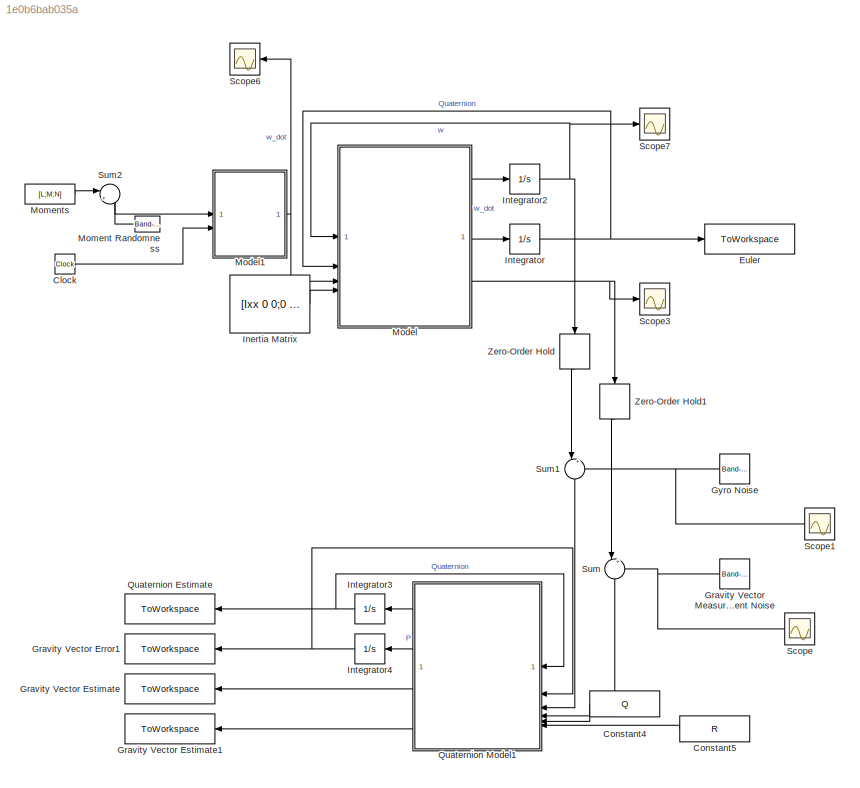
MODEL slx_1e0b6bab035a
KIND model
CONFIG AbsTol = auto
CONFIG EnableMultiTasking = off
CONFIG FixedStep = t_step_model
CONFIG MaxStep = auto
CONFIG MinStep = auto
CONFIG RelTol = 1e-3
CONFIG SampleTimeConstraint = Unconstrained
CONFIG SolverName = ode4
CONFIG StartTime = 0.0
CONFIG StopTime = tf
BLOCK [Clock] Clock
  Decimation = 1/t_step_model
BLOCK [Constant] Constant4
  Value = Q
BLOCK [Constant] Constant5
  Value = R
BLOCK [ToWorkspace] Euler
  FixptAsFi = on
  MaxDataPoints = inf
  SampleTime = -1
  SaveFormat = Structure
  VariableName = Quaternion
BLOCK [ToWorkspace] Gravity Vector Error1
  FixptAsFi = on
  MaxDataPoints = inf
  SampleTime = -1
  SaveFormat = Structure
  VariableName = P
BLOCK [ToWorkspace] Gravity Vector Estimate
  FixptAsFi = on
  MaxDataPoints = inf
  SampleTime = -1
  SaveFormat = Structure
  VariableName = yhat
BLOCK [ToWorkspace] Gravity Vector Estimate1
  FixptAsFi = on
  MaxDataPoints = inf
  NameLocation = top
  SampleTime = -1
  SaveFormat = Structure
  VariableName = ybar
BLOCK [Reference] Gravity Vector Measurement Noise  REF=simulink/Sources/Band-Limited
White Noise
  SourceBlock = simulink/Sources/Band-Limited\nWhite Noise
  SourceType = Band-Limited White Noise.
BLOCK [Reference] Gyro Noise  REF=simulink/Sources/Band-Limited
White Noise
  SourceBlock = simulink/Sources/Band-Limited\nWhite Noise
  SourceType = Band-Limited White Noise.
BLOCK [Constant] Inertia Matrix
  Value = [Ixx 0 0;0 Iyy 0;0 0 Izz]
BLOCK [Integrator] Integrator
  InitialCondition = [1;0;0;0]
BLOCK [Integrator] Integrator2
  InitialCondition = [0;0;0.2]
BLOCK [Integrator] Integrator3
  InitialCondition = [0.7;0.1;-0.05;0.2]
BLOCK [Integrator] Integrator4
  InitialCondition = zeros(4,4)
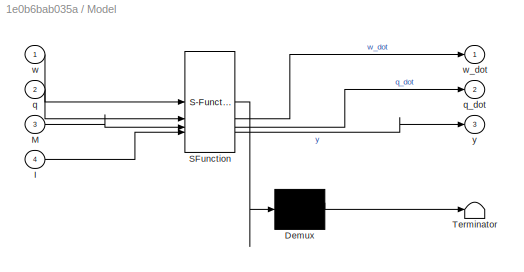
BLOCK [SubSystem] Model
  ErrorFcn = Stateflow.Translate.translate
  PermitHierarchicalResolution = ExplicitOnly
  SFBlockType = MATLAB Function
  TreatAsAtomicUnit = on
BLOCK [Demux] Model/ Demux 
  Outputs = 1
BLOCK [S-Function] Model/ SFunction 
  EnableBusSupport = on
  FunctionName = sf_sfun
  PortCounts = [4 4]
  SFcnIsStateOwnerBlock = off
  SFunctionDeploymentMode = off
  Tag = Stateflow S-Function 4
BLOCK [Terminator] Model/ Terminator 
BLOCK [Inport] Model/I
  Port = 4
BLOCK [Inport] Model/M
  Port = 3
BLOCK [Inport] Model/q
  Port = 2
BLOCK [Outport] Model/q_dot
  Port = 2
BLOCK [Inport] Model/w
BLOCK [Outport] Model/w_dot
BLOCK [Outport] Model/y
  Port = 3
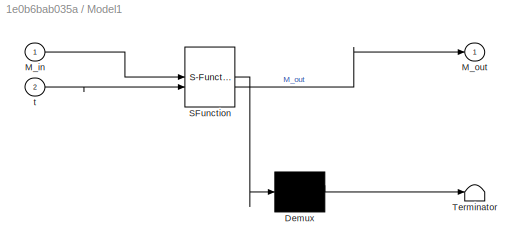
BLOCK [SubSystem] Model1
  ErrorFcn = Stateflow.Translate.translate
  PermitHierarchicalResolution = ExplicitOnly
  SFBlockType = MATLAB Function
  TreatAsAtomicUnit = on
BLOCK [Demux] Model1/ Demux 
  Outputs = 1
BLOCK [S-Function] Model1/ SFunction 
  EnableBusSupport = on
  FunctionName = sf_sfun
  PortCounts = [2 2]
  SFcnIsStateOwnerBlock = off
  SFunctionDeploymentMode = off
  Tag = Stateflow S-Function 2
BLOCK [Terminator] Model1/ Terminator 
BLOCK [Inport] Model1/M_in
BLOCK [Outport] Model1/M_out
BLOCK [Inport] Model1/t
  Port = 2
BLOCK [Reference] Moment Randomness  REF=simulink/Sources/Band-Limited
White Noise
  SourceBlock = simulink/Sources/Band-Limited\nWhite Noise
  SourceType = Band-Limited White Noise.
BLOCK [Constant] Moments
  Value = [L;M;N]
BLOCK [ToWorkspace] Quaternion Estimate
  FixptAsFi = on
  MaxDataPoints = inf
  SampleTime = -1
  SaveFormat = Structure
  VariableName = qhat
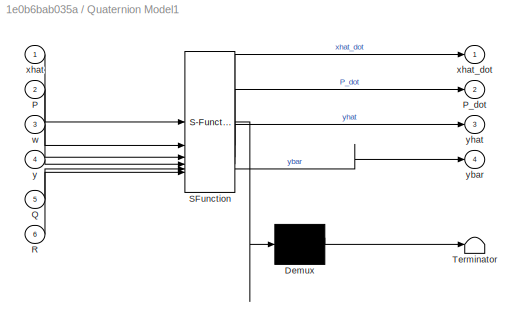
BLOCK [SubSystem] Quaternion Model1
  ErrorFcn = Stateflow.Translate.translate
  PermitHierarchicalResolution = ExplicitOnly
  SFBlockType = MATLAB Function
  SystemSampleTime = t_step_filter
  TreatAsAtomicUnit = on
BLOCK [Demux] Quaternion Model1/ Demux 
  Outputs = 1
BLOCK [S-Function] Quaternion Model1/ SFunction 
  EnableBusSupport = on
  FunctionName = sf_sfun
  PortCounts = [6 5]
  SFcnIsStateOwnerBlock = off
  SFunctionDeploymentMode = off
  Tag = Stateflow S-Function 5
BLOCK [Terminator] Quaternion Model1/ Terminator 
BLOCK [Inport] Quaternion Model1/P
  Port = 2
BLOCK [Outport] Quaternion Model1/P_dot
  Port = 2
BLOCK [Inport] Quaternion Model1/Q
  Port = 5
BLOCK [Inport] Quaternion Model1/R
  Port = 6
BLOCK [Inport] Quaternion Model1/w
  Port = 3
BLOCK [Inport] Quaternion Model1/xhat
BLOCK [Outport] Quaternion Model1/xhat_dot
BLOCK [Inport] Quaternion Model1/y
  Port = 4
BLOCK [Outport] Quaternion Model1/ybar
  Port = 4
BLOCK [Outport] Quaternion Model1/yhat
  Port = 3
BLOCK [Scope] Scope
  Floating = off
  NumInputPorts = 1
  ScopeSpecificationString = Simulink.scopes.TimeScopeBlockCfg('CurrentConfiguration', extmgr.ConfigurationSet(extmgr.Configuration('Core','General UI',true),extmgr.Configuration('Core','Source UI',true),extmgr.Configuration('Sources','WiredSimulink',true),extmgr.Configuration('Visuals','Time Domain',true,'SerializedDisplays',{struct('MinYLimReal','-0.03353','MaxYLimReal','0.03471','YLabelReal','','MinYLimMag','0.00000','MaxY...<+1568ch>
BLOCK [Scope] Scope1
  Floating = off
  NumInputPorts = 1
  ScopeSpecificationString = Simulink.scopes.TimeScopeBlockCfg('CurrentConfiguration', extmgr.ConfigurationSet(extmgr.Configuration('Core','General UI',true),extmgr.Configuration('Core','Source UI',true),extmgr.Configuration('Sources','WiredSimulink',true,'DataLoggingVariableName','ScopeData1','DataLoggingSaveFormat','Structure'),extmgr.Configuration('Visuals','Time Domain',true,'SerializedDisplays',{struct('MinYLimReal','-0....<+1472ch>
BLOCK [Scope] Scope3
  Floating = off
  NumInputPorts = 1
  ScopeSpecificationString = Simulink.scopes.TimeScopeBlockCfg('CurrentConfiguration', extmgr.ConfigurationSet(extmgr.Configuration('Core','General UI',true),extmgr.Configuration('Core','Source UI',true),extmgr.Configuration('Sources','WiredSimulink',true,'DataLoggingVariableName','y','DataLogging',true,'DataLoggingSaveFormat','Structure'),extmgr.Configuration('Visuals','Time Domain',true,'SerializedDisplays',{struct('MinYLim...<+1479ch>
BLOCK [Scope] Scope6
  Floating = off
  NumInputPorts = 1
  ScopeSpecificationString = Simulink.scopes.TimeScopeBlockCfg('CurrentConfiguration', extmgr.ConfigurationSet(extmgr.Configuration('Core','General UI',true),extmgr.Configuration('Core','Source UI',true),extmgr.Configuration('Sources','WiredSimulink',true,'DataLoggingVariableName','ScopeData1','DataLogging',true,'DataLoggingSaveFormat','Structure'),extmgr.Configuration('Visuals','Time Domain',true,'SerializedDisplays',{struct...<+1482ch>
BLOCK [Scope] Scope7
  Floating = off
  NumInputPorts = 1
  ScopeSpecificationString = Simulink.scopes.TimeScopeBlockCfg('CurrentConfiguration', extmgr.ConfigurationSet(extmgr.Configuration('Core','General UI',true),extmgr.Configuration('Core','Source UI',true),extmgr.Configuration('Sources','WiredSimulink',true,'DataLoggingVariableName','w','DataLogging',true,'DataLoggingSaveFormat','StructureWithTime'),extmgr.Configuration('Visuals','Time Domain',true,'SerializedDisplays',{struct(...<+1469ch>
BLOCK [Sum] Sum
  Inputs = |++
  NameLocation = right
BLOCK [Sum] Sum1
  Inputs = |++
  NameLocation = right
BLOCK [Sum] Sum2
  Inputs = |++
  NameLocation = top
BLOCK [ZeroOrderHold] Zero-Order Hold
  NameLocation = left
  SampleTime = t_step_filter
BLOCK [ZeroOrderHold] Zero-Order Hold1
  NameLocation = left
  SampleTime = t_step_filter
LINE Clock:1 -> Model1:2
LINE Constant4:1 -> Quaternion Model1:5
LINE Constant5:1 -> Quaternion Model1:6
NET Gravity Vector Measurement Noise:1 -> Scope:1, Sum:2
NET Gyro Noise:1 -> Scope1:1, Sum1:2
LINE Inertia Matrix:1 -> Model:4
NET Integrator2:1 -> Model:1, Scope7:1, Zero-Order Hold:1
NET Integrator3:1 -> Quaternion Estimate:1, Quaternion Model1:1
NET Integrator4:1 -> Gravity Vector Error1:1, Quaternion Model1:2
NET Integrator:1 -> Euler:1, Model:2
NET Model1:1 -> Model:3, Scope6:1
LINE Model:1 -> Integrator2:1
LINE Model:2 -> Integrator:1
NET Model:3 -> Scope3:1, Zero-Order Hold1:1
LINE Moment Randomness:1 -> Sum2:2
LINE Moments:1 -> Sum2:1
LINE Quaternion Model1:1 -> Integrator3:1
LINE Quaternion Model1:2 -> Integrator4:1
LINE Quaternion Model1:3 -> Gravity Vector Estimate:1
LINE Quaternion Model1:4 -> Gravity Vector Estimate1:1
LINE Sum1:1 -> Quaternion Model1:3
LINE Sum2:1 -> Model1:1
LINE Sum:1 -> Quaternion Model1:4
LINE Zero-Order Hold1:1 -> Sum:1
LINE Zero-Order Hold:1 -> Sum1:1
note: NET lines group one-source signal fan-out (src -> all destinations, sorted); 1:1 wires keep LINE
CHART Model1 states=1 transitions=1
  STATE_LABEL 'eML_blk_kernel()'
  STATE_LABEL 'SCRIPT:\nfunction M_out = fcn(M_in,t)\n    if t<20\n        M_out = M_in;\n    else\n        M_out = zeros(3,1);\n    end\nend\n'
CHART Model states=1 transitions=1
  STATE_LABEL 'eML_blk_kernel()'
  STATE_LABEL 'SCRIPT:\nfunction [w_dot,q_dot,y] = fcn(w,q,M,I)\n    g = [0;0;1];\n    N = [1;0;0];\n    w_dot = I\\(M-cross(w,I*w));\n    omega = 0.5.*[0      -w(1)    -w(2)    -w(3);...\n             w(1)  0       w(3)     -w(2);...\n             w(2)  -w(3)   0       w(1);...\n             w(3)  w(2)    -w(1)   0];\n    q_dot = (omega*q)+(0.5*(1-dot(q,q))*q);\n    u = q(2:4);\n    t = 2*cross(u, g);\n    g_rot = g + q(1)*...<+110ch>'
CHART Quaternion Model1 states=1 transitions=1
  STATE_LABEL 'eML_blk_kernel()'
  STATE_LABEL 'SCRIPT:\nfunction [xhat_dot, P_dot, yhat, ybar]  = fcn(xhat, P, w, y, Q, R)\n    wx = w(1); wy = w(2); wz = w(3);\n    q = xhat;\n\n    g_vec = [0;0;1];\n    t_vec = 2*cross(q(2:4), g_vec);\n    g_rot = g_vec + q(1)*t_vec + cross(q(2:4), t_vec);\n    n_vec = [1;0;0];\n    t_vec = 2*cross(q(2:4), n_vec);\n    n_rot = n_vec+q(1)*t_vec + cross(q(2:4), t_vec);\n    yhat = [g_rot;n_rot];\n    ybar = y-yhat;\n    F ...<+645ch>'
CHART  states=0 transitions=0
CHART  states=0 transitions=0
CHART  states=0 transitions=0
